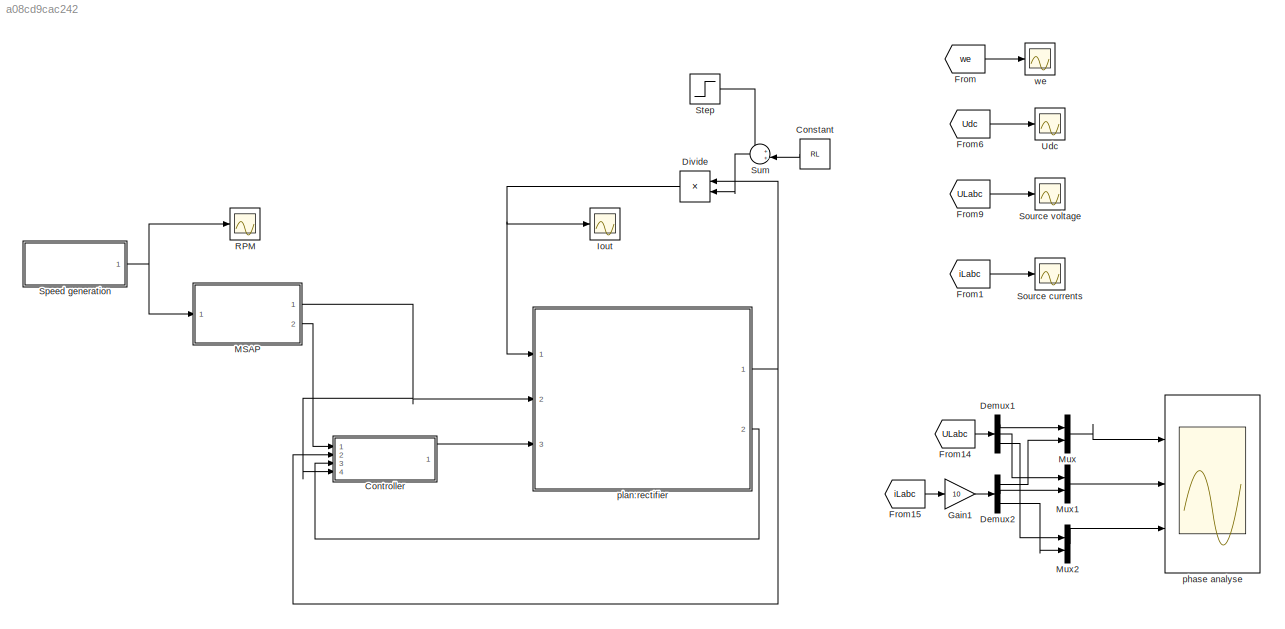
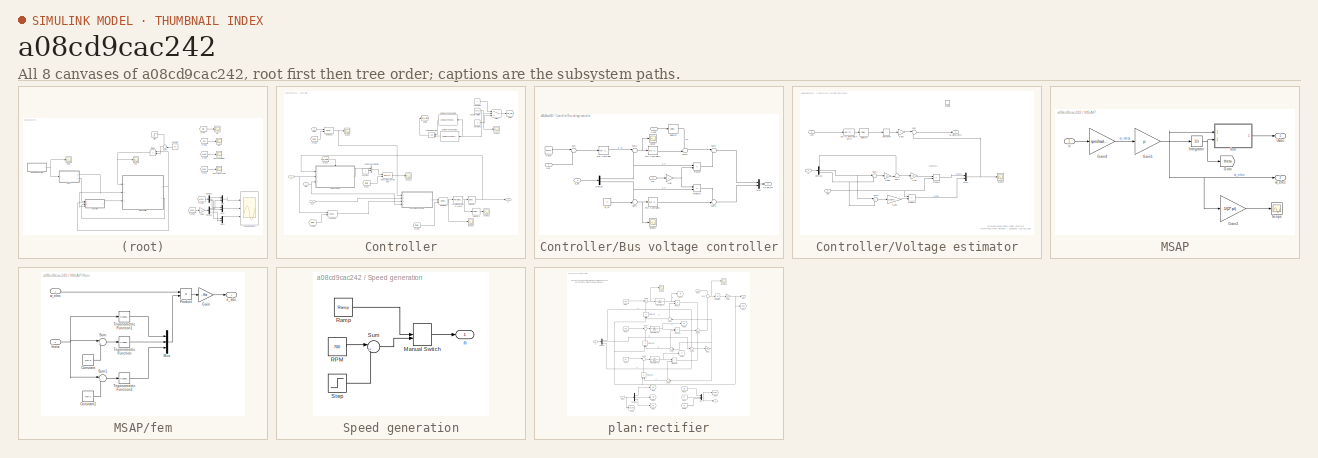
[diagram: thumbnail index - all 8 canvases of the model, root first then tree order]
MODEL slx_a08cd9cac242
KIND model
CONFIG AbsTol = auto
CONFIG FixedStep = Ts
CONFIG MaxStep = auto
CONFIG MinStep = auto
CONFIG RelTol = 1e-3
CONFIG SampleTimeConstraint = Unconstrained
CONFIG Solver = ode3
CONFIG SolverMode = Auto
CONFIG SolverName = ode3
CONFIG StartTime = 0.0
CONFIG StopTime = 3
BLOCK [Constant] Constant
  Value = RL
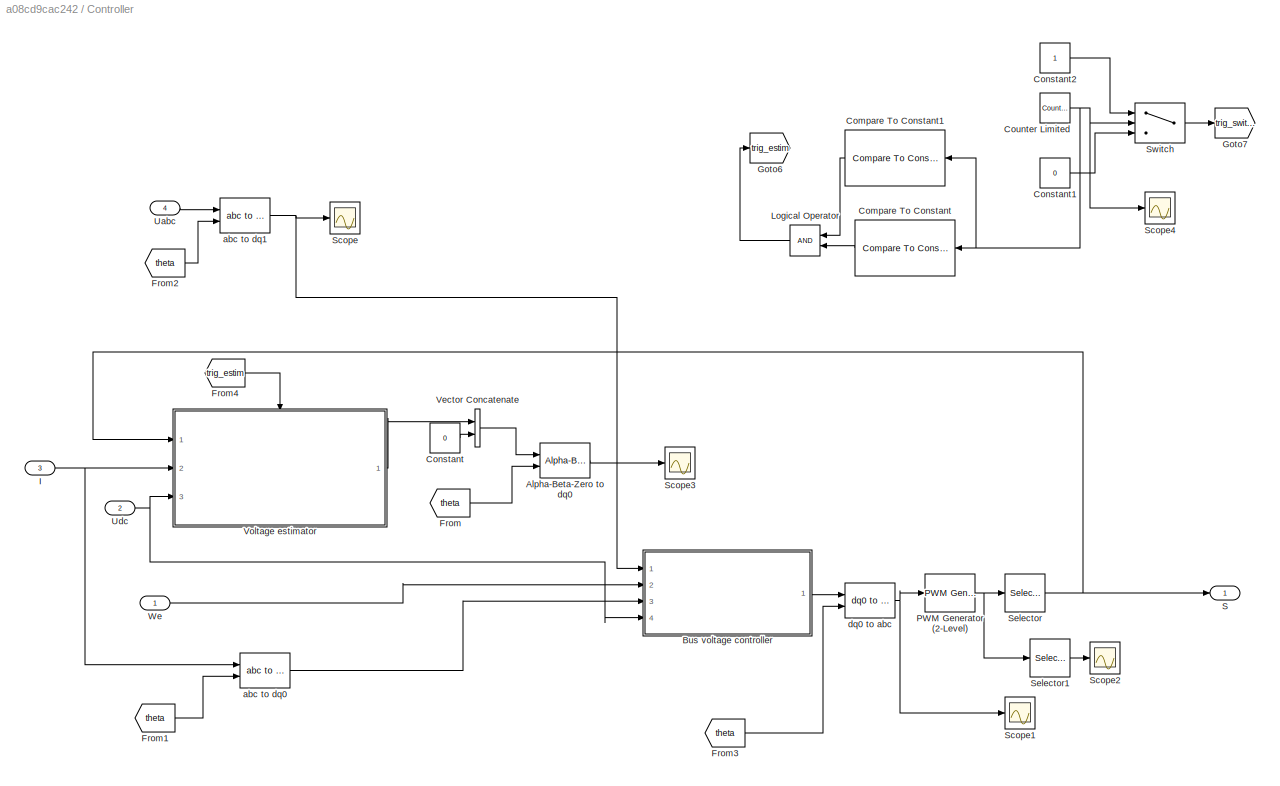
BLOCK [SubSystem] Controller
  Ports = [4, 1]
  RequestExecContextInheritance = off
BLOCK [Reference] Controller/Alpha-Beta-Zero to dq0  REF=powerlib_meascontrol/Transformations/Alpha-Beta-Zero
to dq0
  Alignment = Aligned with phase A axis
  Ports = [2, 1]
  SourceBlock = powerlib_meascontrol/Transformations/Alpha-Beta-Zero\nto dq0
  SourceType = Alpha-Beta-Zero to dq0 Transformation
BLOCK [SubSystem] Controller/Bus voltage controller
  Ports = [4, 1]
  RequestExecContextInheritance = off
BLOCK [Demux] Controller/Bus voltage controller/Demux
  DisplayOption = bar
  Outputs = 2
  Ports = [1, 2]
BLOCK [Gain] Controller/Bus voltage controller/Gain
  Gain = L
  OutDataTypeStr = Inherit: Inherit via internal rule
  ParamDataTypeStr = Inherit: Inherit via internal rule
  SaturateOnIntegerOverflow = off
BLOCK [Mux] Controller/Bus voltage controller/Mux
  DisplayOption = bar
  Inputs = 2
  Ports = [2, 1]
BLOCK [Reference] Controller/Bus voltage controller/PID Controller  REF=simulink/Continuous/PID Controller
  AntiWindupMode = none
  Controller = PI
  ControllerParametersSource = internal
  D = 0
  DGainOutDataTypeStr = Inherit: Inherit via internal rule
  DOutDataTypeStr = Inherit: Inherit via internal rule
  DOutMax = []
  DOutMin = []
  DParamDataTypeStr = Inherit: Inherit via internal rule
  DParamMax = []
  DParamMin = []
  DProdOutDataTypeStr = Inherit: Inherit via internal rule
  DifferentiatorICPrevScaledInput = 0
  DifferentiatorOutDataTypeStr = Inherit: Inherit via internal rule
  DifferentiatorOutMax = []
  DifferentiatorOutMin = []
  ExternalReset = none
  FilterContinuousStateAttributes = ''
  FilterMethod = Forward Euler
  FilterOutDataTypeStr = Inherit: Inherit via internal rule
  FilterOutMax = []
  FilterOutMin = []
  FilterRTWStateStorageClass = Auto
  FilterStateMustResolveToSignalObject = off
  Form = Parallel
  I = 1
  IGainOutDataTypeStr = Inherit: Inherit via internal rule
  IOutDataTypeStr = Inherit: Inherit via internal rule
  IOutMax = []
  IOutMin = []
  IParamDataTypeStr = Inherit: Inherit via internal rule
  IParamMax = []
  IParamMin = []
  IProdOutDataTypeStr = Inherit: Inherit via internal rule
  IgnoreLimit = off
  InitialConditionForFilter = 0
  InitialConditionForIntegrator = 0
  InitialConditionSource = internal
  IntegratorContinuousStateAttributes = ''
  IntegratorMethod = Forward Euler
  IntegratorOutDataTypeStr = Inherit: Inherit via internal rule
  IntegratorOutMax = []
  IntegratorOutMin = []
  IntegratorRTWStateStorageClass = Auto
  IntegratorStateMustResolveToSignalObject = off
  Kb = 1
  KbOutDataTypeStr = Inherit: Inherit via internal rule
  KbOutMax = []
  KbOutMin = []
  KbParamDataTypeStr = Inherit: Inherit via internal rule
  KbParamMax = []
  KbParamMin = []
  Kt = 1
  KtOutDataTypeStr = Inherit: Inherit via internal rule
  KtOutMax = []
  KtOutMin = []
  KtParamDataTypeStr = Inherit: Inherit via internal rule
  KtParamMax = []
  KtParamMin = []
  LimitOutput = off
  LinearizeAsGain = on
  LockScale = off
  LowerSaturationLimit = -inf
  N = 100
  NGainOutDataTypeStr = Inherit: Inherit via internal rule
  NOutDataTypeStr = Inherit: Inherit via internal rule
  NOutMax = []
  NOutMin = []
  NParamDataTypeStr = Inherit: Inherit via internal rule
  NParamMax = []
  NParamMin = []
  NProdOutDataTypeStr = Inherit: Inherit via internal rule
  P = 1
  PGainOutDataTypeStr = Inherit: Inherit via internal rule
  POutDataTypeStr = Inherit: Inherit via internal rule
  POutMax = []
  POutMin = []
  PParamDataTypeStr = Inherit: Inherit via internal rule
  PParamMax = []
  PParamMin = []
  PProdOutDataTypeStr = Inherit: Inherit via internal rule
  Ports = [1, 1]
  RndMeth = Floor
  SampleTime = -1
  SaturateOnIntegerOverflow = off
  SaturationOutDataTypeStr = Inherit: Same as input
  SaturationOutMax = []
  SaturationOutMin = []
  SourceBlock = simulink/Continuous/PID Controller
  SourceType = PID 1dof
  SumAccumDataTypeStr = Inherit: Inherit via internal rule
  SumDAccumDataTypeStr = Inherit: Inherit via internal rule
  SumDOutDataTypeStr = Inherit: Inherit via internal rule
  SumDOutMax = []
  SumDOutMin = []
  SumI1AccumDataTypeStr = Inherit: Inherit via internal rule
  SumI1OutDataTypeStr = Inherit: Inherit via internal rule
  SumI1OutMax = []
  SumI1OutMin = []
  SumI2AccumDataTypeStr = Inherit: Inherit via internal rule
  SumI2OutDataTypeStr = Inherit: Inherit via internal rule
  SumI2OutMax = []
  SumI2OutMin = []
  SumI3AccumDataTypeStr = Inherit: Inherit via internal rule
  SumI3OutDataTypeStr = Inherit: Inherit via internal rule
  SumI3OutMax = []
  SumI3OutMin = []
  SumOutDataTypeStr = Inherit: Inherit via internal rule
  SumOutMax = []
  SumOutMin = []
  TimeDomain = Continuous-time
  TrackingMode = off
  UpperSaturationLimit = inf
  UseFilter = on
  ZeroCross = on
BLOCK [Reference] Controller/Bus voltage controller/PID Controller1  REF=simulink/Continuous/PID Controller
  AntiWindupMode = none
  Controller = PI
  ControllerParametersSource = internal
  D = 0
  DGainOutDataTypeStr = Inherit: Inherit via internal rule
  DOutDataTypeStr = Inherit: Inherit via internal rule
  DOutMax = []
  DOutMin = []
  DParamDataTypeStr = Inherit: Inherit via internal rule
  DParamMax = []
  DParamMin = []
  DProdOutDataTypeStr = Inherit: Inherit via internal rule
  DifferentiatorICPrevScaledInput = 0
  DifferentiatorOutDataTypeStr = Inherit: Inherit via internal rule
  DifferentiatorOutMax = []
  DifferentiatorOutMin = []
  ExternalReset = none
  FilterContinuousStateAttributes = ''
  FilterMethod = Forward Euler
  FilterOutDataTypeStr = Inherit: Inherit via internal rule
  FilterOutMax = []
  FilterOutMin = []
  FilterRTWStateStorageClass = Auto
  FilterStateMustResolveToSignalObject = off
  Form = Parallel
  I = 0.01
  IGainOutDataTypeStr = Inherit: Inherit via internal rule
  IOutDataTypeStr = Inherit: Inherit via internal rule
  IOutMax = []
  IOutMin = []
  IParamDataTypeStr = Inherit: Inherit via internal rule
  IParamMax = []
  IParamMin = []
  IProdOutDataTypeStr = Inherit: Inherit via internal rule
  IgnoreLimit = off
  InitialConditionForFilter = 0
  InitialConditionForIntegrator = 0
  InitialConditionSource = internal
  IntegratorContinuousStateAttributes = ''
  IntegratorMethod = Forward Euler
  IntegratorOutDataTypeStr = Inherit: Inherit via internal rule
  IntegratorOutMax = []
  IntegratorOutMin = []
  IntegratorRTWStateStorageClass = Auto
  IntegratorStateMustResolveToSignalObject = off
  Kb = 1
  KbOutDataTypeStr = Inherit: Inherit via internal rule
  KbOutMax = []
  KbOutMin = []
  KbParamDataTypeStr = Inherit: Inherit via internal rule
  KbParamMax = []
  KbParamMin = []
  Kt = 1
  KtOutDataTypeStr = Inherit: Inherit via internal rule
  KtOutMax = []
  KtOutMin = []
  KtParamDataTypeStr = Inherit: Inherit via internal rule
  KtParamMax = []
  KtParamMin = []
  LimitOutput = off
  LinearizeAsGain = on
  LockScale = off
  LowerSaturationLimit = -inf
  N = 100
  NGainOutDataTypeStr = Inherit: Inherit via internal rule
  NOutDataTypeStr = Inherit: Inherit via internal rule
  NOutMax = []
  NOutMin = []
  NParamDataTypeStr = Inherit: Inherit via internal rule
  NParamMax = []
  NParamMin = []
  NProdOutDataTypeStr = Inherit: Inherit via internal rule
  P = 0.01
  PGainOutDataTypeStr = Inherit: Inherit via internal rule
  POutDataTypeStr = Inherit: Inherit via internal rule
  POutMax = []
  POutMin = []
  PParamDataTypeStr = Inherit: Inherit via internal rule
  PParamMax = []
  PParamMin = []
  PProdOutDataTypeStr = Inherit: Inherit via internal rule
  Ports = [1, 1]
  RndMeth = Floor
  SampleTime = -1
  SaturateOnIntegerOverflow = off
  SaturationOutDataTypeStr = Inherit: Same as input
  SaturationOutMax = []
  SaturationOutMin = []
  SourceBlock = simulink/Continuous/PID Controller
  SourceType = PID 1dof
  SumAccumDataTypeStr = Inherit: Inherit via internal rule
  SumDAccumDataTypeStr = Inherit: Inherit via internal rule
  SumDOutDataTypeStr = Inherit: Inherit via internal rule
  SumDOutMax = []
  SumDOutMin = []
  SumI1AccumDataTypeStr = Inherit: Inherit via internal rule
  SumI1OutDataTypeStr = Inherit: Inherit via internal rule
  SumI1OutMax = []
  SumI1OutMin = []
  SumI2AccumDataTypeStr = Inherit: Inherit via internal rule
  SumI2OutDataTypeStr = Inherit: Inherit via internal rule
  SumI2OutMax = []
  SumI2OutMin = []
  SumI3AccumDataTypeStr = Inherit: Inherit via internal rule
  SumI3OutDataTypeStr = Inherit: Inherit via internal rule
  SumI3OutMax = []
  SumI3OutMin = []
  SumOutDataTypeStr = Inherit: Inherit via internal rule
  SumOutMax = []
  SumOutMin = []
  TimeDomain = Continuous-time
  TrackingMode = off
  UpperSaturationLimit = inf
  UseFilter = on
  ZeroCross = on
BLOCK [Reference] Controller/Bus voltage controller/PID Controller2  REF=simulink/Continuous/PID Controller
  AntiWindupMode = none
  Controller = PI
  ControllerParametersSource = internal
  D = 0
  DGainOutDataTypeStr = Inherit: Inherit via internal rule
  DOutDataTypeStr = Inherit: Inherit via internal rule
  DOutMax = []
  DOutMin = []
  DParamDataTypeStr = Inherit: Inherit via internal rule
  DParamMax = []
  DParamMin = []
  DProdOutDataTypeStr = Inherit: Inherit via internal rule
  DifferentiatorICPrevScaledInput = 0
  DifferentiatorOutDataTypeStr = Inherit: Inherit via internal rule
  DifferentiatorOutMax = []
  DifferentiatorOutMin = []
  ExternalReset = none
  FilterContinuousStateAttributes = ''
  FilterMethod = Forward Euler
  FilterOutDataTypeStr = Inherit: Inherit via internal rule
  FilterOutMax = []
  FilterOutMin = []
  FilterRTWStateStorageClass = Auto
  FilterStateMustResolveToSignalObject = off
  Form = Parallel
  I = 0.1
  IGainOutDataTypeStr = Inherit: Inherit via internal rule
  IOutDataTypeStr = Inherit: Inherit via internal rule
  IOutMax = []
  IOutMin = []
  IParamDataTypeStr = Inherit: Inherit via internal rule
  IParamMax = []
  IParamMin = []
  IProdOutDataTypeStr = Inherit: Inherit via internal rule
  IgnoreLimit = off
  InitialConditionForFilter = 0
  InitialConditionForIntegrator = 0
  InitialConditionSource = internal
  IntegratorContinuousStateAttributes = ''
  IntegratorMethod = Forward Euler
  IntegratorOutDataTypeStr = Inherit: Inherit via internal rule
  IntegratorOutMax = []
  IntegratorOutMin = []
  IntegratorRTWStateStorageClass = Auto
  IntegratorStateMustResolveToSignalObject = off
  Kb = 1
  KbOutDataTypeStr = Inherit: Inherit via internal rule
  KbOutMax = []
  KbOutMin = []
  KbParamDataTypeStr = Inherit: Inherit via internal rule
  KbParamMax = []
  KbParamMin = []
  Kt = 1
  KtOutDataTypeStr = Inherit: Inherit via internal rule
  KtOutMax = []
  KtOutMin = []
  KtParamDataTypeStr = Inherit: Inherit via internal rule
  KtParamMax = []
  KtParamMin = []
  LimitOutput = off
  LinearizeAsGain = on
  LockScale = off
  LowerSaturationLimit = -inf
  N = 100
  NGainOutDataTypeStr = Inherit: Inherit via internal rule
  NOutDataTypeStr = Inherit: Inherit via internal rule
  NOutMax = []
  NOutMin = []
  NParamDataTypeStr = Inherit: Inherit via internal rule
  NParamMax = []
  NParamMin = []
  NProdOutDataTypeStr = Inherit: Inherit via internal rule
  P = 1
  PGainOutDataTypeStr = Inherit: Inherit via internal rule
  POutDataTypeStr = Inherit: Inherit via internal rule
  POutMax = []
  POutMin = []
  PParamDataTypeStr = Inherit: Inherit via internal rule
  PParamMax = []
  PParamMin = []
  PProdOutDataTypeStr = Inherit: Inherit via internal rule
  Ports = [1, 1]
  RndMeth = Floor
  SampleTime = -1
  SaturateOnIntegerOverflow = off
  SaturationOutDataTypeStr = Inherit: Same as input
  SaturationOutMax = []
  SaturationOutMin = []
  SourceBlock = simulink/Continuous/PID Controller
  SourceType = PID 1dof
  SumAccumDataTypeStr = Inherit: Inherit via internal rule
  SumDAccumDataTypeStr = Inherit: Inherit via internal rule
  SumDOutDataTypeStr = Inherit: Inherit via internal rule
  SumDOutMax = []
  SumDOutMin = []
  SumI1AccumDataTypeStr = Inherit: Inherit via internal rule
  SumI1OutDataTypeStr = Inherit: Inherit via internal rule
  SumI1OutMax = []
  SumI1OutMin = []
  SumI2AccumDataTypeStr = Inherit: Inherit via internal rule
  SumI2OutDataTypeStr = Inherit: Inherit via internal rule
  SumI2OutMax = []
  SumI2OutMin = []
  SumI3AccumDataTypeStr = Inherit: Inherit via internal rule
  SumI3OutDataTypeStr = Inherit: Inherit via internal rule
  SumI3OutMax = []
  SumI3OutMin = []
  SumOutDataTypeStr = Inherit: Inherit via internal rule
  SumOutMax = []
  SumOutMin = []
  TimeDomain = Continuous-time
  TrackingMode = off
  UpperSaturationLimit = inf
  UseFilter = on
  ZeroCross = on
BLOCK [Product] Controller/Bus voltage controller/Product
  InputSameDT = off
  OutDataTypeStr = Inherit: Inherit via internal rule
  Ports = [2, 1]
  RndMeth = Floor
  SaturateOnIntegerOverflow = off
BLOCK [Product] Controller/Bus voltage controller/Product1
  InputSameDT = off
  OutDataTypeStr = Inherit: Inherit via internal rule
  Ports = [2, 1]
  RndMeth = Floor
  SaturateOnIntegerOverflow = off
BLOCK [Scope] Controller/Bus voltage controller/Scope
  Floating = off
  LimitDataPoints = off
  NumInputPorts = 1
  Ports = [1]
  SaveName = ScopeData5
  TimeRange = 3
  YMax = 92.5
  YMin = 57.5
BLOCK [Scope] Controller/Bus voltage controller/Scope1
  Floating = off
  LimitDataPoints = off
  NumInputPorts = 1
  Ports = [1]
  SaveName = ScopeData6
  YMax = 2e-13
  YMin = -7.5e-14
BLOCK [Selector] Controller/Bus voltage controller/Selector
  Indices = [1]
  InputPortWidth = 3
  Ports = [1, 1]
BLOCK [Sum] Controller/Bus voltage controller/Sum
  IconShape = round
  InputSameDT = off
  Inputs = |+-
  OutDataTypeStr = Inherit: Inherit via internal rule
  Ports = [2, 1]
  SaturateOnIntegerOverflow = off
BLOCK [Sum] Controller/Bus voltage controller/Sum1
  IconShape = round
  InputSameDT = off
  Inputs = -+|
  OutDataTypeStr = Inherit: Inherit via internal rule
  Ports = [2, 1]
  SaturateOnIntegerOverflow = off
BLOCK [Sum] Controller/Bus voltage controller/Sum2
  IconShape = round
  InputSameDT = off
  Inputs = |+-
  OutDataTypeStr = Inherit: Inherit via internal rule
  Ports = [2, 1]
  SaturateOnIntegerOverflow = off
BLOCK [Sum] Controller/Bus voltage controller/Sum3
  IconShape = round
  InputSameDT = off
  Inputs = -+|
  OutDataTypeStr = Inherit: Inherit via internal rule
  Ports = [2, 1]
  SaturateOnIntegerOverflow = off
BLOCK [Sum] Controller/Bus voltage controller/Sum4
  IconShape = round
  InputSameDT = off
  Inputs = |++
  OutDataTypeStr = Inherit: Inherit via internal rule
  Ports = [2, 1]
  SaturateOnIntegerOverflow = off
BLOCK [Sum] Controller/Bus voltage controller/Sum5
  IconShape = round
  InputSameDT = off
  Inputs = ++|
  OutDataTypeStr = Inherit: Inherit via internal rule
  Ports = [2, 1]
  SaturateOnIntegerOverflow = off
BLOCK [Inport] Controller/Bus voltage controller/ULdq
  IconDisplay = Port number
BLOCK [Inport] Controller/Bus voltage controller/Udc
  IconDisplay = Port number
  Port = 4
BLOCK [Constant] Controller/Bus voltage controller/Udref
  Value = Udcref
BLOCK [Outport] Controller/Bus voltage controller/Us_dq_ref
  IconDisplay = Port number
BLOCK [Inport] Controller/Bus voltage controller/iL_dq
  IconDisplay = Port number
  Port = 3
BLOCK [Constant] Controller/Bus voltage controller/iq_ref
  Value = 0
BLOCK [Inport] Controller/Bus voltage controller/we
  IconDisplay = Port number
  Port = 2
BLOCK [Reference] Controller/Compare To Constant  REF=simulink/Logic and Bit
Operations/Compare
To Constant
  OutDataTypeStr = boolean
  Ports = [1, 1]
  SourceBlock = simulink/Logic and Bit\nOperations/Compare\nTo Constant
  SourceType = Compare To Constant
  ZeroCross = on
  const = 1
  relop = >
BLOCK [Reference] Controller/Compare To Constant1  REF=simulink/Logic and Bit
Operations/Compare
To Constant
  OutDataTypeStr = boolean
  Ports = [1, 1]
  SourceBlock = simulink/Logic and Bit\nOperations/Compare\nTo Constant
  SourceType = Compare To Constant
  ZeroCross = on
  const = fsw_diviser
  relop = <
BLOCK [Constant] Controller/Constant
  Value = 0
BLOCK [Constant] Controller/Constant1
  Value = 0
BLOCK [Constant] Controller/Constant2
BLOCK [Reference] Controller/Counter Limited  REF=simulink/Sources/Counter
Limited
  Ports = [0, 1]
  SourceBlock = simulink/Sources/Counter\nLimited
  SourceType = Counter Limited
  tsamp = -1
  uplimit = fsw_diviser
BLOCK [From] Controller/From
  GotoTag = theta
  TagVisibility = global
BLOCK [From] Controller/From1
  GotoTag = theta
  TagVisibility = global
BLOCK [From] Controller/From2
  GotoTag = theta
  TagVisibility = global
BLOCK [From] Controller/From3
  GotoTag = theta
  TagVisibility = global
BLOCK [From] Controller/From4
  GotoTag = trig_estim
BLOCK [Goto] Controller/Goto6
  GotoTag = trig_estim
BLOCK [Goto] Controller/Goto7
  GotoTag = trig_switch
BLOCK [Inport] Controller/I
  IconDisplay = Port number
  Port = 3
BLOCK [Logic] Controller/Logical Operator
  AllPortsSameDT = off
  OutDataTypeStr = boolean
  Ports = [2, 1]
BLOCK [Reference] Controller/PWM Generator (2-Level)  REF=powerlib_meascontrol/Pulse & Signal
Generators/PWM Generator
(2-Level)
  Fc = 10000
  Freq = 60
  MinMax = [ -40  40 ]
  ModulatingSignals = off
  ModulatorMode = Unsynchronized
  ModulatorType = Three-phase bridge (6 pulses)
  Pc = 90
  Phase = 0
  Ports = [1, 1]
  SamplingTechnique = Natural
  ShowCarrierOutport = off
  SourceBlock = powerlib_meascontrol/Pulse & Signal\nGenerators/PWM Generator\n(2-Level)
  SourceType = PWM Generator (2-Level)
  Ts = Ts
  m = 0.8
  nF = 27
BLOCK [Outport] Controller/S
  IconDisplay = Port number
BLOCK [Scope] Controller/Scope
  Floating = off
  NumInputPorts = 1
  Ports = [1]
  SaveName = ScopeData1
  YMax = 45
  YMin = -2.5
BLOCK [Scope] Controller/Scope1
  Floating = off
  NumInputPorts = 1
  Ports = [1]
  SaveName = ScopeData2
  YMax = 350
  YMin = -350
BLOCK [Scope] Controller/Scope2
  Floating = off
  NumInputPorts = 1
  Ports = [1]
  SaveName = ScopeData3
  YMax = 350
  YMin = -350
BLOCK [Scope] Controller/Scope3
  Floating = off
  NumInputPorts = 1
  Ports = [1]
  SaveName = ScopeData7
  YMax = 45
  YMin = -2.5
BLOCK [Scope] Controller/Scope4
  Floating = off
  LimitDataPoints = off
  NumInputPorts = 1
  Ports = [1]
  SaveName = ScopeData23
  YMax = 175
  YMin = -275
  ZoomMode = xonly
BLOCK [Selector] Controller/Selector
  Indices = [1 3 5]
  InputPortWidth = 6
  Ports = [1, 1]
BLOCK [Selector] Controller/Selector1
  Indices = [1]
  InputPortWidth = 6
  Ports = [1, 1]
BLOCK [Switch] Controller/Switch
  InputSameDT = off
  SaturateOnIntegerOverflow = off
  Threshold = fsw_diviser
BLOCK [Inport] Controller/Uabc
  IconDisplay = Port number
  Port = 4
BLOCK [Inport] Controller/Udc
  IconDisplay = Port number
  Port = 2
BLOCK [Concatenate] Controller/Vector Concatenate
  Ports = [2, 1]
BLOCK [SubSystem] Controller/Voltage estimator
  Ports = [3, 1, 1]
  RequestExecContextInheritance = off
BLOCK [Demux] Controller/Voltage estimator/Demux2
  DisplayOption = bar
  Outputs = 3
  Ports = [1, 3]
BLOCK [Derivative] Controller/Voltage estimator/Derivative
BLOCK [EnablePort] Controller/Voltage estimator/Enable
  Ports = []
BLOCK [Gain] Controller/Voltage estimator/Gain
  Gain = 2/3
  OutDataTypeStr = Inherit: Inherit via internal rule
  ParamDataTypeStr = Inherit: Inherit via internal rule
  SaturateOnIntegerOverflow = off
BLOCK [Gain] Controller/Voltage estimator/Gain1
  Gain = L
  OutDataTypeStr = Inherit: Inherit via internal rule
  ParamDataTypeStr = Inherit: Inherit via internal rule
  SaturateOnIntegerOverflow = off
BLOCK [Gain] Controller/Voltage estimator/Gain2
  Gain = 1/2
  OutDataTypeStr = Inherit: Inherit via internal rule
  ParamDataTypeStr = Inherit: Inherit via internal rule
  SaturateOnIntegerOverflow = off
BLOCK [Gain] Controller/Voltage estimator/Gain3
  Gain = 1/sqrt(3)
  OutDataTypeStr = Inherit: Inherit via internal rule
  ParamDataTypeStr = Inherit: Inherit via internal rule
  SaturateOnIntegerOverflow = off
BLOCK [Inport] Controller/Voltage estimator/Iabc
  IconDisplay = Port number
  Port = 2
BLOCK [Mux] Controller/Voltage estimator/Mux1
  DisplayOption = bar
  Inputs = 2
  Ports = [2, 1]
BLOCK [Product] Controller/Voltage estimator/Product
  InputSameDT = off
  OutDataTypeStr = Inherit: Inherit via internal rule
  Ports = [2, 1]
  RndMeth = Floor
  SaturateOnIntegerOverflow = off
BLOCK [Product] Controller/Voltage estimator/Product1
  InputSameDT = off
  OutDataTypeStr = Inherit: Inherit via internal rule
  Ports = [2, 1]
  RndMeth = Floor
  SaturateOnIntegerOverflow = off
BLOCK [Inport] Controller/Voltage estimator/S
  IconDisplay = Port number
BLOCK [Scope] Controller/Voltage estimator/Scope2
  Floating = off
  LimitDataPoints = off
  NumInputPorts = 1
  Ports = [1]
  SaveName = ScopeData4
  ShowLegends = on
  YMax = 8
  YMin = -8
  ZoomMode = xonly
BLOCK [Selector] Controller/Voltage estimator/Selector
  Indices = [1 2]
  InputPortWidth = 3
  Ports = [1, 1]
BLOCK [Sum] Controller/Voltage estimator/Sum
  IconShape = round
  InputSameDT = off
  Inputs = |++
  OutDataTypeStr = Inherit: Inherit via internal rule
  Ports = [2, 1]
  SaturateOnIntegerOverflow = off
BLOCK [Sum] Controller/Voltage estimator/Sum1
  IconShape = round
  InputSameDT = off
  Inputs = |++
  OutDataTypeStr = Inherit: Inherit via internal rule
  Ports = [2, 1]
  SaturateOnIntegerOverflow = off
BLOCK [Sum] Controller/Voltage estimator/Sum2
  IconShape = round
  InputSameDT = off
  Inputs = +-|
  OutDataTypeStr = Inherit: Inherit via internal rule
  Ports = [2, 1]
  SaturateOnIntegerOverflow = off
BLOCK [Sum] Controller/Voltage estimator/Sum3
  IconShape = round
  InputSameDT = off
  Inputs = |+-
  OutDataTypeStr = Inherit: Inherit via internal rule
  Ports = [2, 1]
  SaturateOnIntegerOverflow = off
BLOCK [Outport] Controller/Voltage estimator/UL_alpha_beta
  IconDisplay = Port number
BLOCK [Inport] Controller/Voltage estimator/Udc
  IconDisplay = Port number
  Port = 3
BLOCK [Reference] Controller/Voltage estimator/abc to Alpha-Beta-Zero1  REF=powerlib_meascontrol/Transformations/abc to
Alpha-Beta-Zero
  Ports = [1, 1]
  SourceBlock = powerlib_meascontrol/Transformations/abc to\nAlpha-Beta-Zero
  SourceType = abc to Alpha-Beta-Zero Transformation
BLOCK [Inport] Controller/We
  IconDisplay = Port number
BLOCK [Reference] Controller/abc to dq0  REF=powerlib_meascontrol/Transformations/abc to dq0
  Alignment = Aligned with phase A axis
  Ports = [2, 1]
  SourceBlock = powerlib_meascontrol/Transformations/abc to dq0
  SourceType = abc to dq0 Transformation
BLOCK [Reference] Controller/abc to dq1  REF=powerlib_meascontrol/Transformations/abc to dq0
  Alignment = Aligned with phase A axis
  Ports = [2, 1]
  SourceBlock = powerlib_meascontrol/Transformations/abc to dq0
  SourceType = abc to dq0 Transformation
BLOCK [Reference] Controller/dq0 to abc  REF=powerlib_meascontrol/Transformations/dq0 to abc
  Alignment = Aligned with phase A axis
  Ports = [2, 1]
  SourceBlock = powerlib_meascontrol/Transformations/dq0 to abc
  SourceType = dq0 to abc Transformation
BLOCK [Demux] Demux1
  DisplayOption = bar
  Outputs = 3
  Ports = [1, 3]
BLOCK [Demux] Demux2
  DisplayOption = bar
  Outputs = 3
  Ports = [1, 3]
BLOCK [Product] Divide
  InputSameDT = off
  Inputs = */
  OutDataTypeStr = Inherit: Inherit via internal rule
  Ports = [2, 1]
  RndMeth = Floor
  SaturateOnIntegerOverflow = off
BLOCK [From] From
  GotoTag = we
BLOCK [From] From1
  GotoTag = iLabc
  TagVisibility = global
BLOCK [From] From14
  GotoTag = ULabc
  TagVisibility = global
BLOCK [From] From15
  GotoTag = iLabc
  TagVisibility = global
BLOCK [From] From6
  GotoTag = Udc
  TagVisibility = global
BLOCK [From] From9
  GotoTag = ULabc
  TagVisibility = global
BLOCK [Gain] Gain1
  Gain = 10
  OutDataTypeStr = Inherit: Inherit via internal rule
  ParamDataTypeStr = Inherit: Inherit via internal rule
  SaturateOnIntegerOverflow = off
BLOCK [Scope] Iout
  Floating = off
  LimitDataPoints = off
  NumInputPorts = 1
  Ports = [1]
  YMax = 0.2575
  YMin = 0.2275
BLOCK [SubSystem] MSAP
  Ports = [1, 2]
  RequestExecContextInheritance = off
BLOCK [Gain] MSAP/Gain1
  Gain = p
  OutDataTypeStr = Inherit: Inherit via internal rule
  ParamDataTypeStr = Inherit: Inherit via internal rule
  SaturateOnIntegerOverflow = off
BLOCK [Gain] MSAP/Gain2
  Gain = 1/(2*pi)
  OutDataTypeStr = Inherit: Inherit via internal rule
  ParamDataTypeStr = Inherit: Inherit via internal rule
  SaturateOnIntegerOverflow = off
BLOCK [Gain] MSAP/Gain4
  Gain = rpm2radps
  OutDataTypeStr = Inherit: Inherit via internal rule
  ParamDataTypeStr = Inherit: Inherit via internal rule
  SaturateOnIntegerOverflow = off
BLOCK [Goto] MSAP/Goto
  GotoTag = theta
  TagVisibility = global
BLOCK [Integrator] MSAP/Integrator
  Ports = [1, 1]
BLOCK [Scope] MSAP/Scope
  Floating = off
  NumInputPorts = 1
  Ports = [1]
  SaveName = ScopeData9
  YMax = 21
  YMin = 19
BLOCK [Outport] MSAP/Uabc
  IconDisplay = Port number
BLOCK [SubSystem] MSAP/fem
  Ports = [2, 1]
  RequestExecContextInheritance = off
BLOCK [Constant] MSAP/fem/Constant
  Value = 2*pi/3
BLOCK [Constant] MSAP/fem/Constant1
  Value = 4*pi/3
BLOCK [Gain] MSAP/fem/Gain
  Gain = - Ka
  OutDataTypeStr = Inherit: Inherit via internal rule
  ParamDataTypeStr = Inherit: Inherit via internal rule
  SaturateOnIntegerOverflow = off
BLOCK [Mux] MSAP/fem/Mux
  DisplayOption = bar
  Inputs = 3
  Ports = [3, 1]
BLOCK [Product] MSAP/fem/Product
  InputSameDT = off
  OutDataTypeStr = Inherit: Inherit via internal rule
  Ports = [2, 1]
  RndMeth = Floor
  SaturateOnIntegerOverflow = off
BLOCK [Sum] MSAP/fem/Sum
  IconShape = round
  InputSameDT = off
  Inputs = |+-
  OutDataTypeStr = Inherit: Inherit via internal rule
  Ports = [2, 1]
  SaturateOnIntegerOverflow = off
BLOCK [Sum] MSAP/fem/Sum1
  IconShape = round
  InputSameDT = off
  Inputs = |+-
  OutDataTypeStr = Inherit: Inherit via internal rule
  Ports = [2, 1]
  SaturateOnIntegerOverflow = off
BLOCK [Trigonometry] MSAP/fem/Trigonometric Function
  Ports = [1, 1]
BLOCK [Trigonometry] MSAP/fem/Trigonometric Function1
  Ports = [1, 1]
BLOCK [Trigonometry] MSAP/fem/Trigonometric Function2
  Ports = [1, 1]
BLOCK [Outport] MSAP/fem/e_abc
  IconDisplay = Port number
BLOCK [Inport] MSAP/fem/theta
  IconDisplay = Port number
  Port = 2
BLOCK [Inport] MSAP/fem/w_elec
  IconDisplay = Port number
BLOCK [Inport] MSAP/n
  IconDisplay = Port number
BLOCK [Outport] MSAP/w_elec
  IconDisplay = Port number
  Port = 2
BLOCK [Mux] Mux
  DisplayOption = bar
  Inputs = 2
  Ports = [2, 1]
BLOCK [Mux] Mux1
  DisplayOption = bar
  Inputs = 2
  Ports = [2, 1]
BLOCK [Mux] Mux2
  DisplayOption = bar
  Inputs = 2
  Ports = [2, 1]
BLOCK [Scope] RPM
  Floating = off
  LimitDataPoints = off
  NumInputPorts = 1
  Ports = [1]
  SaveName = ScopeData26
  YMax = 0.2575
  YMin = 0.2275
BLOCK [Scope] Source currents
  Floating = off
  LimitDataPoints = off
  NumInputPorts = 1
  Ports = [1]
  SaveName = Iabc
  TimeRange = 2
  YMax = 22.5
  YMin = -22.5
BLOCK [Scope] Source voltage 
  Floating = off
  LimitDataPoints = off
  NumInputPorts = 1
  Ports = [1]
  SaveName = Uabc
  TimeRange = 0.06239913932221623
  YMax = 20
  YMin = -20
  ZoomMode = xonly
BLOCK [SubSystem] Speed generation
  Ports = [0, 1]
  RequestExecContextInheritance = off
BLOCK [ManualSwitch] Speed generation/Manual Switch
  CurrentSetting = 0
BLOCK [Constant] Speed generation/RPM
  Value = 700
BLOCK [Reference] Speed generation/Ramp  REF=simulink/Sources/Ramp
  Ports = [0, 1]
  SourceBlock = simulink/Sources/Ramp
  SourceType = Ramp
  VectorParams1D = on
  X0 = 700
  slope = 100
  start = 0
BLOCK [Step] Speed generation/Step
  After = 0
  SampleTime = 0
  Time = 0.5
BLOCK [Sum] Speed generation/Sum
  IconShape = round
  InputSameDT = off
  Inputs = |++
  OutDataTypeStr = Inherit: Inherit via internal rule
  Ports = [2, 1]
  SaturateOnIntegerOverflow = off
BLOCK [Outport] Speed generation/n
  IconDisplay = Port number
BLOCK [Step] Step
  After = 0
  SampleTime = 0
  Time = 0.5
BLOCK [Sum] Sum
  IconShape = round
  InputSameDT = off
  Inputs = ++|
  OutDataTypeStr = Inherit: Inherit via internal rule
  Ports = [2, 1]
  SaturateOnIntegerOverflow = off
BLOCK [Scope] Udc
  Floating = off
  LimitDataPoints = off
  NumInputPorts = 1
  Ports = [1]
  SaveName = Udc
  TimeRange = 3
  YMax = 101.2
  YMin = 99.6
BLOCK [Scope] phase analyse
  Floating = off
  LimitDataPoints = off
  NumInputPorts = 3
  Ports = [3]
  SaveName = Uabc2
  TimeRange = 0.06239913932221623
  YMax = 30~30~30
  YMin = -30~-30~-30
  ZoomMode = xonly
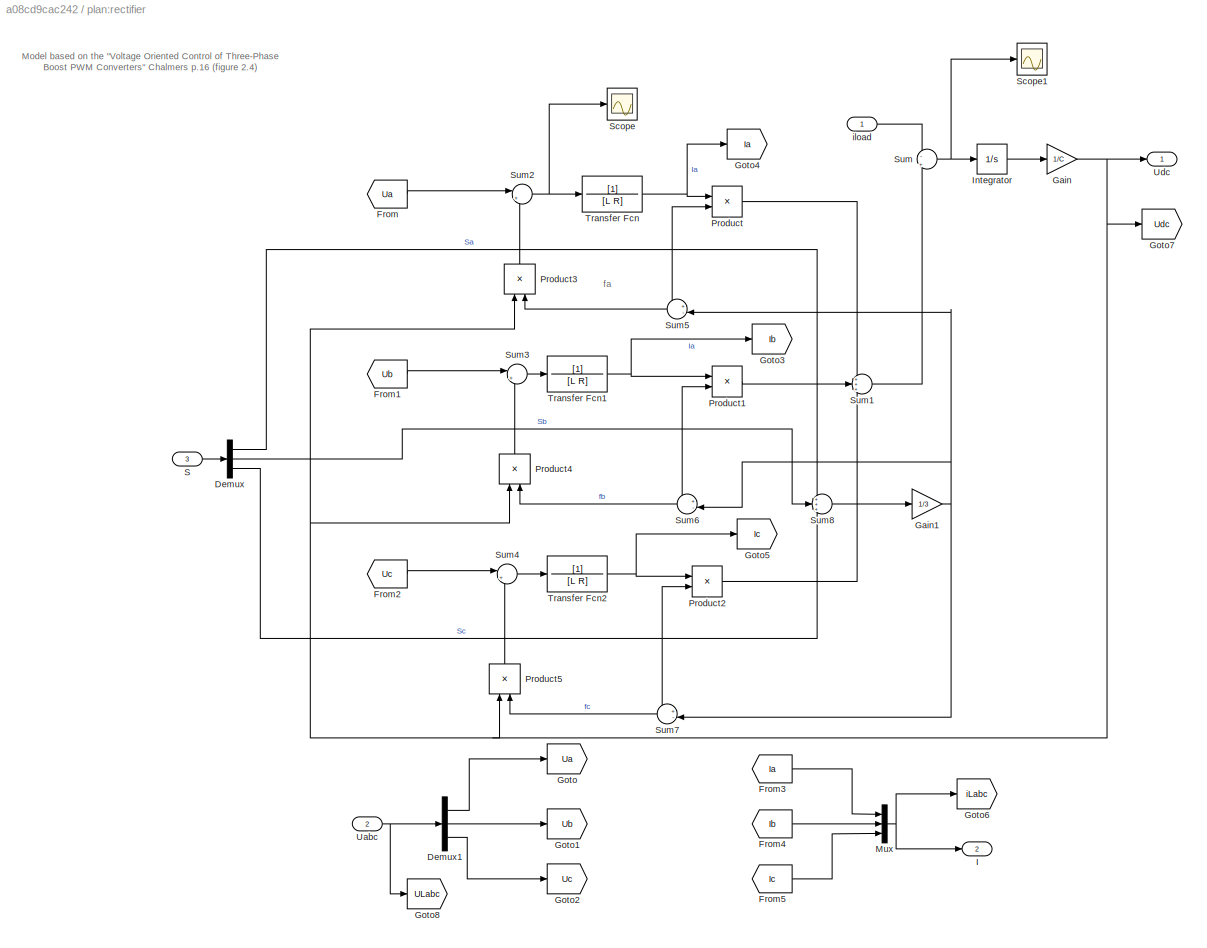
BLOCK [SubSystem] plan:rectifier
  Ports = [3, 2]
  RequestExecContextInheritance = off
BLOCK [Demux] plan:rectifier/Demux
  DisplayOption = bar
  Outputs = 3
  Ports = [1, 3]
BLOCK [Demux] plan:rectifier/Demux1
  DisplayOption = bar
  Outputs = 3
  Ports = [1, 3]
BLOCK [From] plan:rectifier/From
  GotoTag = Ua
BLOCK [From] plan:rectifier/From1
  GotoTag = Ub
BLOCK [From] plan:rectifier/From2
  GotoTag = Uc
BLOCK [From] plan:rectifier/From3
  GotoTag = Ia
BLOCK [From] plan:rectifier/From4
  GotoTag = Ib
BLOCK [From] plan:rectifier/From5
  GotoTag = Ic
BLOCK [Gain] plan:rectifier/Gain
  Gain = 1/C
  OutDataTypeStr = Inherit: Inherit via internal rule
  ParamDataTypeStr = Inherit: Inherit via internal rule
  SaturateOnIntegerOverflow = off
BLOCK [Gain] plan:rectifier/Gain1
  Gain = 1/3
  OutDataTypeStr = Inherit: Inherit via internal rule
  ParamDataTypeStr = Inherit: Inherit via internal rule
  SaturateOnIntegerOverflow = off
BLOCK [Goto] plan:rectifier/Goto
  GotoTag = Ua
BLOCK [Goto] plan:rectifier/Goto1
  GotoTag = Ub
BLOCK [Goto] plan:rectifier/Goto2
  GotoTag = Uc
BLOCK [Goto] plan:rectifier/Goto3
  GotoTag = Ib
BLOCK [Goto] plan:rectifier/Goto4
  GotoTag = Ia
BLOCK [Goto] plan:rectifier/Goto5
  GotoTag = Ic
BLOCK [Goto] plan:rectifier/Goto6
  GotoTag = iLabc
  TagVisibility = global
BLOCK [Goto] plan:rectifier/Goto7
  GotoTag = Udc
  TagVisibility = global
BLOCK [Goto] plan:rectifier/Goto8
  GotoTag = ULabc
  TagVisibility = global
BLOCK [Outport] plan:rectifier/I
  IconDisplay = Port number
  Port = 2
BLOCK [Integrator] plan:rectifier/Integrator
  Ports = [1, 1]
BLOCK [Mux] plan:rectifier/Mux
  DisplayOption = bar
  Inputs = 3
  Ports = [3, 1]
BLOCK [Product] plan:rectifier/Product
  InputSameDT = off
  OutDataTypeStr = Inherit: Inherit via internal rule
  Ports = [2, 1]
  RndMeth = Floor
  SaturateOnIntegerOverflow = off
BLOCK [Product] plan:rectifier/Product1
  InputSameDT = off
  OutDataTypeStr = Inherit: Inherit via internal rule
  Ports = [2, 1]
  RndMeth = Floor
  SaturateOnIntegerOverflow = off
BLOCK [Product] plan:rectifier/Product2
  InputSameDT = off
  OutDataTypeStr = Inherit: Inherit via internal rule
  Ports = [2, 1]
  RndMeth = Floor
  SaturateOnIntegerOverflow = off
BLOCK [Product] plan:rectifier/Product3
  InputSameDT = off
  OutDataTypeStr = Inherit: Inherit via internal rule
  Ports = [2, 1]
  RndMeth = Floor
  SaturateOnIntegerOverflow = off
BLOCK [Product] plan:rectifier/Product4
  InputSameDT = off
  OutDataTypeStr = Inherit: Inherit via internal rule
  Ports = [2, 1]
  RndMeth = Floor
  SaturateOnIntegerOverflow = off
BLOCK [Product] plan:rectifier/Product5
  InputSameDT = off
  OutDataTypeStr = Inherit: Inherit via internal rule
  Ports = [2, 1]
  RndMeth = Floor
  SaturateOnIntegerOverflow = off
BLOCK [Inport] plan:rectifier/S
  IconDisplay = Port number
  Port = 3
BLOCK [Scope] plan:rectifier/Scope
  Floating = off
  NumInputPorts = 1
  Ports = [1]
  SaveName = ScopeData14
  ZoomMode = xonly
BLOCK [Scope] plan:rectifier/Scope1
  Floating = off
  NumInputPorts = 1
  Ports = [1]
  SaveName = ScopeData12
BLOCK [Sum] plan:rectifier/Sum
  IconShape = round
  InputSameDT = off
  Inputs = -|+
  OutDataTypeStr = Inherit: Inherit via internal rule
  Ports = [2, 1]
  SaturateOnIntegerOverflow = off
BLOCK [Sum] plan:rectifier/Sum1
  IconShape = round
  InputSameDT = off
  Inputs = +++
  OutDataTypeStr = Inherit: Inherit via internal rule
  Ports = [3, 1]
  SaturateOnIntegerOverflow = off
BLOCK [Sum] plan:rectifier/Sum2
  IconShape = round
  InputSameDT = off
  Inputs = |+-
  OutDataTypeStr = Inherit: Inherit via internal rule
  Ports = [2, 1]
  SaturateOnIntegerOverflow = off
BLOCK [Sum] plan:rectifier/Sum3
  IconShape = round
  InputSameDT = off
  Inputs = |+-
  OutDataTypeStr = Inherit: Inherit via internal rule
  Ports = [2, 1]
  SaturateOnIntegerOverflow = off
BLOCK [Sum] plan:rectifier/Sum4
  IconShape = round
  InputSameDT = off
  Inputs = |+-
  OutDataTypeStr = Inherit: Inherit via internal rule
  Ports = [2, 1]
  SaturateOnIntegerOverflow = off
BLOCK [Sum] plan:rectifier/Sum5
  IconShape = round
  InputSameDT = off
  Inputs = +-|
  OutDataTypeStr = Inherit: Inherit via internal rule
  Ports = [2, 1]
  SaturateOnIntegerOverflow = off
BLOCK [Sum] plan:rectifier/Sum6
  IconShape = round
  InputSameDT = off
  Inputs = +-|
  OutDataTypeStr = Inherit: Inherit via internal rule
  Ports = [2, 1]
  SaturateOnIntegerOverflow = off
BLOCK [Sum] plan:rectifier/Sum7
  IconShape = round
  InputSameDT = off
  Inputs = +-|
  OutDataTypeStr = Inherit: Inherit via internal rule
  Ports = [2, 1]
  SaturateOnIntegerOverflow = off
BLOCK [Sum] plan:rectifier/Sum8
  IconShape = round
  InputSameDT = off
  Inputs = +++
  OutDataTypeStr = Inherit: Inherit via internal rule
  Ports = [3, 1]
  SaturateOnIntegerOverflow = off
BLOCK [TransferFcn] plan:rectifier/Transfer Fcn
  ContinuousStateAttributes = 'Ia'
  Denominator = [L R]
BLOCK [TransferFcn] plan:rectifier/Transfer Fcn1
  Denominator = [L R]
BLOCK [TransferFcn] plan:rectifier/Transfer Fcn2
  Denominator = [L R]
BLOCK [Inport] plan:rectifier/Uabc
  IconDisplay = Port number
  Port = 2
BLOCK [Outport] plan:rectifier/Udc
  IconDisplay = Port number
BLOCK [Inport] plan:rectifier/iload
  IconDisplay = Port number
BLOCK [Scope] we
  Floating = off
  LimitDataPoints = off
  NumInputPorts = 1
  Ports = [1]
  SaveName = ScopeData10
  YMax = 131.947
  YMin = 119.381
ANNOTATION Controller/Voltage estimator: Usalphbeta
ANNOTATION Controller/Voltage estimator: Virtual-Flux-Based Direct Power Control of Three-Phase PWM Rectifiers - equations (20a and 20b)
ANNOTATION plan:rectifier: Model based on the "Voltage Oriented Control of Three‐Phase Boost PWM Converters" Chalmers p.16 (figure 2.4)
ANNOTATION plan:rectifier: fa
LINE Constant:1 -> Sum:2
LINE Controller/Alpha-Beta-Zero to dq0:1 -> Controller/Scope3:1
NET Controller/Bus voltage controller/Demux:1 -> Controller/Bus voltage controller/Product:1, Controller/Bus voltage controller/Sum2:2
NET Controller/Bus voltage controller/Demux:2 -> Controller/Bus voltage controller/Product1:2, Controller/Bus voltage controller/Sum1:1
NET Controller/Bus voltage controller/Gain:1 -> Controller/Bus voltage controller/Product1:1, Controller/Bus voltage controller/Product:2
LINE Controller/Bus voltage controller/Mux:1 -> Controller/Bus voltage controller/Us_dq_ref:1
LINE Controller/Bus voltage controller/PID Controller1:1 -> Controller/Bus voltage controller/Sum3:2
LINE Controller/Bus voltage controller/PID Controller2:1 -> Controller/Bus voltage controller/Sum5:2
LINE Controller/Bus voltage controller/PID Controller:1 -> Controller/Bus voltage controller/Sum2:1
LINE Controller/Bus voltage controller/Product1:1 -> Controller/Bus voltage controller/Sum3:1
LINE Controller/Bus voltage controller/Product:1 -> Controller/Bus voltage controller/Sum4:2
LINE Controller/Bus voltage controller/Selector:1 -> Controller/Bus voltage controller/Sum5:1
NET Controller/Bus voltage controller/Sum1:1 -> Controller/Bus voltage controller/PID Controller1:1, Controller/Bus voltage controller/Scope1:1
NET Controller/Bus voltage controller/Sum2:1 -> Controller/Bus voltage controller/PID Controller2:1, Controller/Bus voltage controller/Scope:1
LINE Controller/Bus voltage controller/Sum3:1 -> Controller/Bus voltage controller/Mux:2
LINE Controller/Bus voltage controller/Sum4:1 -> Controller/Bus voltage controller/Mux:1
LINE Controller/Bus voltage controller/Sum5:1 -> Controller/Bus voltage controller/Sum4:1
LINE Controller/Bus voltage controller/Sum:1 -> Controller/Bus voltage controller/PID Controller:1
LINE Controller/Bus voltage controller/ULdq:1 -> Controller/Bus voltage controller/Selector:1
LINE Controller/Bus voltage controller/Udc:1 -> Controller/Bus voltage controller/Sum:2
LINE Controller/Bus voltage controller/Udref:1 -> Controller/Bus voltage controller/Sum:1
LINE Controller/Bus voltage controller/iL_dq:1 -> Controller/Bus voltage controller/Demux:1
LINE Controller/Bus voltage controller/iq_ref:1 -> Controller/Bus voltage controller/Sum1:2
LINE Controller/Bus voltage controller/we:1 -> Controller/Bus voltage controller/Gain:1
LINE Controller/Bus voltage controller:1 -> Controller/dq0 to abc:1
LINE Controller/Compare To Constant1:1 -> Controller/Logical Operator:1
LINE Controller/Compare To Constant:1 -> Controller/Logical Operator:2
LINE Controller/Constant1:1 -> Controller/Switch:3
LINE Controller/Constant2:1 -> Controller/Switch:1
LINE Controller/Constant:1 -> Controller/Vector Concatenate:2
NET Controller/Counter Limited:1 -> Controller/Compare To Constant1:1, Controller/Compare To Constant:1, Controller/Scope4:1, Controller/Switch:2
LINE Controller/From1:1 -> Controller/abc to dq0:2
LINE Controller/From2:1 -> Controller/abc to dq1:2
LINE Controller/From3:1 -> Controller/dq0 to abc:2
LINE Controller/From4:1 -> Controller/Voltage estimator:enable
LINE Controller/From:1 -> Controller/Alpha-Beta-Zero to dq0:2
NET Controller/I:1 -> Controller/Voltage estimator:2, Controller/abc to dq0:1
LINE Controller/Logical Operator:1 -> Controller/Goto6:1
NET Controller/PWM Generator (2-Level):1 -> Controller/Selector1:1, Controller/Selector:1
LINE Controller/Selector1:1 -> Controller/Scope2:1
NET Controller/Selector:1 -> Controller/S:1, Controller/Voltage estimator:1
LINE Controller/Switch:1 -> Controller/Goto7:1
LINE Controller/Uabc:1 -> Controller/abc to dq1:1
NET Controller/Udc:1 -> Controller/Bus voltage controller:4, Controller/Voltage estimator:3
LINE Controller/Vector Concatenate:1 -> Controller/Alpha-Beta-Zero to dq0:1
LINE Controller/Voltage estimator/Demux2:1 -> Controller/Voltage estimator/Sum2:1
NET Controller/Voltage estimator/Demux2:2 -> Controller/Voltage estimator/Sum1:1, Controller/Voltage estimator/Sum3:1
NET Controller/Voltage estimator/Demux2:3 -> Controller/Voltage estimator/Sum1:2, Controller/Voltage estimator/Sum3:2
LINE Controller/Voltage estimator/Derivative:1 -> Controller/Voltage estimator/Gain1:1
LINE Controller/Voltage estimator/Gain1:1 -> Controller/Voltage estimator/Sum:1
LINE Controller/Voltage estimator/Gain2:1 -> Controller/Voltage estimator/Sum2:2
LINE Controller/Voltage estimator/Gain3:1 -> Controller/Voltage estimator/Product1:2
LINE Controller/Voltage estimator/Gain:1 -> Controller/Voltage estimator/Product:1
LINE Controller/Voltage estimator/Iabc:1 -> Controller/Voltage estimator/abc to Alpha-Beta-Zero1:1
NET Controller/Voltage estimator/Mux1:1 -> Controller/Voltage estimator/Scope2:1, Controller/Voltage estimator/Sum:2
LINE Controller/Voltage estimator/Product1:1 -> Controller/Voltage estimator/Mux1:2
LINE Controller/Voltage estimator/Product:1 -> Controller/Voltage estimator/Mux1:1
LINE Controller/Voltage estimator/S:1 -> Controller/Voltage estimator/Demux2:1
LINE Controller/Voltage estimator/Selector:1 -> Controller/Voltage estimator/Derivative:1
LINE Controller/Voltage estimator/Sum1:1 -> Controller/Voltage estimator/Gain2:1
LINE Controller/Voltage estimator/Sum2:1 -> Controller/Voltage estimator/Gain:1
LINE Controller/Voltage estimator/Sum3:1 -> Controller/Voltage estimator/Gain3:1
LINE Controller/Voltage estimator/Sum:1 -> Controller/Voltage estimator/UL_alpha_beta:1
NET Controller/Voltage estimator/Udc:1 -> Controller/Voltage estimator/Product1:1, Controller/Voltage estimator/Product:2
LINE Controller/Voltage estimator/abc to Alpha-Beta-Zero1:1 -> Controller/Voltage estimator/Selector:1
LINE Controller/Voltage estimator:1 -> Controller/Vector Concatenate:1
LINE Controller/We:1 -> Controller/Bus voltage controller:2
LINE Controller/abc to dq0:1 -> Controller/Bus voltage controller:3
NET Controller/abc to dq1:1 -> Controller/Bus voltage controller:1, Controller/Scope:1
NET Controller/dq0 to abc:1 -> Controller/PWM Generator (2-Level):1, Controller/Scope1:1
LINE Controller:1 -> plan:rectifier:3
LINE Demux1:1 -> Mux:1
LINE Demux1:2 -> Mux1:1
LINE Demux1:3 -> Mux2:1
LINE Demux2:1 -> Mux:2
LINE Demux2:2 -> Mux1:2
LINE Demux2:3 -> Mux2:2
NET Divide:1 -> Iout:1, plan:rectifier:1
LINE From14:1 -> Demux1:1
LINE From15:1 -> Gain1:1
LINE From1:1 -> Source currents:1
LINE From6:1 -> Udc:1
LINE From9:1 -> Source voltage :1
LINE From:1 -> we:1
LINE Gain1:1 -> Demux2:1
NET MSAP/Gain1:1 -> MSAP/Gain2:1, MSAP/Integrator:1, MSAP/fem:1, MSAP/w_elec:1
LINE MSAP/Gain2:1 -> MSAP/Scope:1
LINE MSAP/Gain4:1 -> MSAP/Gain1:1
NET MSAP/Integrator:1 -> MSAP/Goto:1, MSAP/fem:2
LINE MSAP/fem/Constant1:1 -> MSAP/fem/Sum1:2
LINE MSAP/fem/Constant:1 -> MSAP/fem/Sum:2
LINE MSAP/fem/Gain:1 -> MSAP/fem/e_abc:1
LINE MSAP/fem/Mux:1 -> MSAP/fem/Product:2
LINE MSAP/fem/Product:1 -> MSAP/fem/Gain:1
LINE MSAP/fem/Sum1:1 -> MSAP/fem/Trigonometric Function2:1
LINE MSAP/fem/Sum:1 -> MSAP/fem/Trigonometric Function:1
LINE MSAP/fem/Trigonometric Function1:1 -> MSAP/fem/Mux:1
LINE MSAP/fem/Trigonometric Function2:1 -> MSAP/fem/Mux:3
LINE MSAP/fem/Trigonometric Function:1 -> MSAP/fem/Mux:2
NET MSAP/fem/theta:1 -> MSAP/fem/Sum1:1, MSAP/fem/Sum:1, MSAP/fem/Trigonometric Function1:1
LINE MSAP/fem/w_elec:1 -> MSAP/fem/Product:1
LINE MSAP/fem:1 -> MSAP/Uabc:1
LINE MSAP/n:1 -> MSAP/Gain4:1
NET MSAP:1 -> Controller:4, plan:rectifier:2
LINE MSAP:2 -> Controller:1
LINE Mux1:1 -> phase analyse:2
LINE Mux2:1 -> phase analyse:3
LINE Mux:1 -> phase analyse:1
LINE Speed generation/Manual Switch:1 -> Speed generation/n:1
LINE Speed generation/RPM:1 -> Speed generation/Sum:1
LINE Speed generation/Ramp:1 -> Speed generation/Manual Switch:1
LINE Speed generation/Step:1 -> Speed generation/Sum:2
LINE Speed generation/Sum:1 -> Speed generation/Manual Switch:2
NET Speed generation:1 -> MSAP:1, RPM:1
LINE Step:1 -> Sum:1
LINE Sum:1 -> Divide:2
LINE plan:rectifier/Demux1:1 -> plan:rectifier/Goto:1
LINE plan:rectifier/Demux1:2 -> plan:rectifier/Goto1:1
LINE plan:rectifier/Demux1:3 -> plan:rectifier/Goto2:1
NET plan:rectifier/Demux:1 -> plan:rectifier/Product:2, plan:rectifier/Sum5:1, plan:rectifier/Sum8:1
NET plan:rectifier/Demux:2 -> plan:rectifier/Product1:2, plan:rectifier/Sum6:1, plan:rectifier/Sum8:2
NET plan:rectifier/Demux:3 -> plan:rectifier/Product2:2, plan:rectifier/Sum7:1, plan:rectifier/Sum8:3
LINE plan:rectifier/From1:1 -> plan:rectifier/Sum3:1
LINE plan:rectifier/From2:1 -> plan:rectifier/Sum4:1
LINE plan:rectifier/From3:1 -> plan:rectifier/Mux:1
LINE plan:rectifier/From4:1 -> plan:rectifier/Mux:2
LINE plan:rectifier/From5:1 -> plan:rectifier/Mux:3
LINE plan:rectifier/From:1 -> plan:rectifier/Sum2:1
NET plan:rectifier/Gain1:1 -> plan:rectifier/Sum5:2, plan:rectifier/Sum6:2, plan:rectifier/Sum7:2
NET plan:rectifier/Gain:1 -> plan:rectifier/Goto7:1, plan:rectifier/Product3:1, plan:rectifier/Product4:1, plan:rectifier/Product5:1, plan:rectifier/Udc:1
LINE plan:rectifier/Integrator:1 -> plan:rectifier/Gain:1
NET plan:rectifier/Mux:1 -> plan:rectifier/Goto6:1, plan:rectifier/I:1
LINE plan:rectifier/Product1:1 -> plan:rectifier/Sum1:2
LINE plan:rectifier/Product2:1 -> plan:rectifier/Sum1:3
LINE plan:rectifier/Product3:1 -> plan:rectifier/Sum2:2
LINE plan:rectifier/Product4:1 -> plan:rectifier/Sum3:2
LINE plan:rectifier/Product5:1 -> plan:rectifier/Sum4:2
LINE plan:rectifier/Product:1 -> plan:rectifier/Sum1:1
LINE plan:rectifier/S:1 -> plan:rectifier/Demux:1
LINE plan:rectifier/Sum1:1 -> plan:rectifier/Sum:2
NET plan:rectifier/Sum2:1 -> plan:rectifier/Scope:1, plan:rectifier/Transfer Fcn:1
LINE plan:rectifier/Sum3:1 -> plan:rectifier/Transfer Fcn1:1
LINE plan:rectifier/Sum4:1 -> plan:rectifier/Transfer Fcn2:1
LINE plan:rectifier/Sum5:1 -> plan:rectifier/Product3:2
LINE plan:rectifier/Sum6:1 -> plan:rectifier/Product4:2
LINE plan:rectifier/Sum7:1 -> plan:rectifier/Product5:2
LINE plan:rectifier/Sum8:1 -> plan:rectifier/Gain1:1
NET plan:rectifier/Sum:1 -> plan:rectifier/Integrator:1, plan:rectifier/Scope1:1
NET plan:rectifier/Transfer Fcn1:1 -> plan:rectifier/Goto3:1, plan:rectifier/Product1:1
NET plan:rectifier/Transfer Fcn2:1 -> plan:rectifier/Goto5:1, plan:rectifier/Product2:1
NET plan:rectifier/Transfer Fcn:1 -> plan:rectifier/Goto4:1, plan:rectifier/Product:1
NET plan:rectifier/Uabc:1 -> plan:rectifier/Demux1:1, plan:rectifier/Goto8:1
LINE plan:rectifier/iload:1 -> plan:rectifier/Sum:1
NET plan:rectifier:1 -> Controller:2, Divide:1
LINE plan:rectifier:2 -> Controller:3
note: NET lines group one-source signal fan-out (src -> all destinations, sorted); 1:1 wires keep LINE
